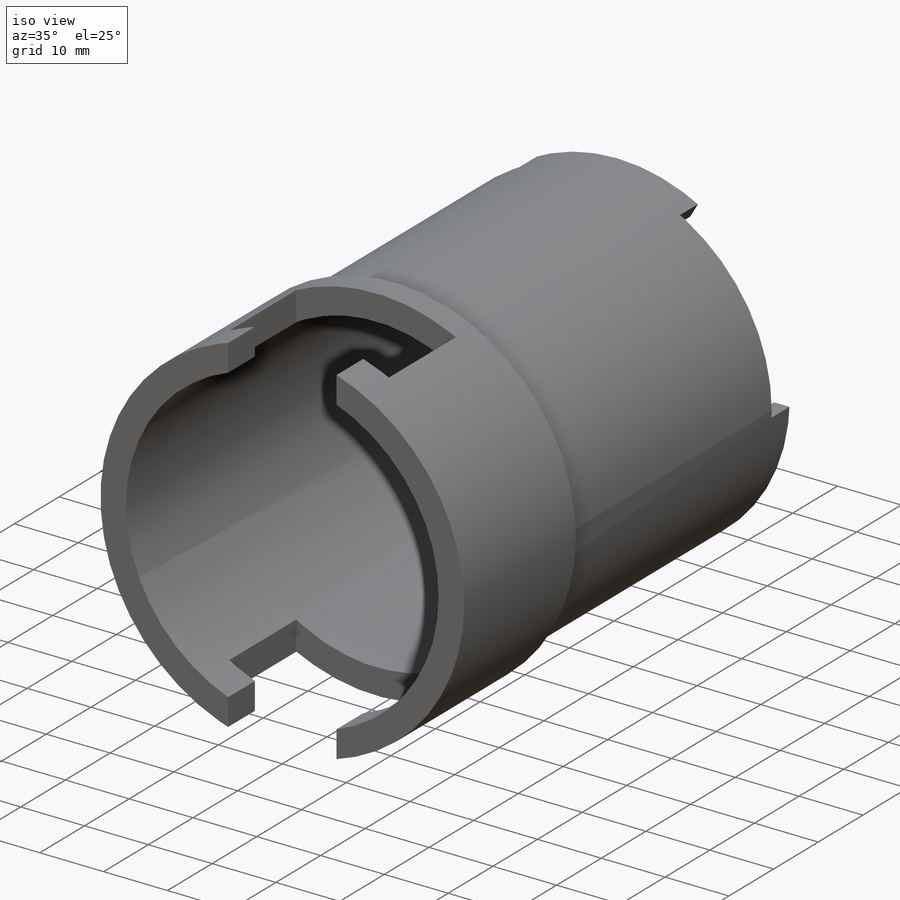
[diagram: iso view]
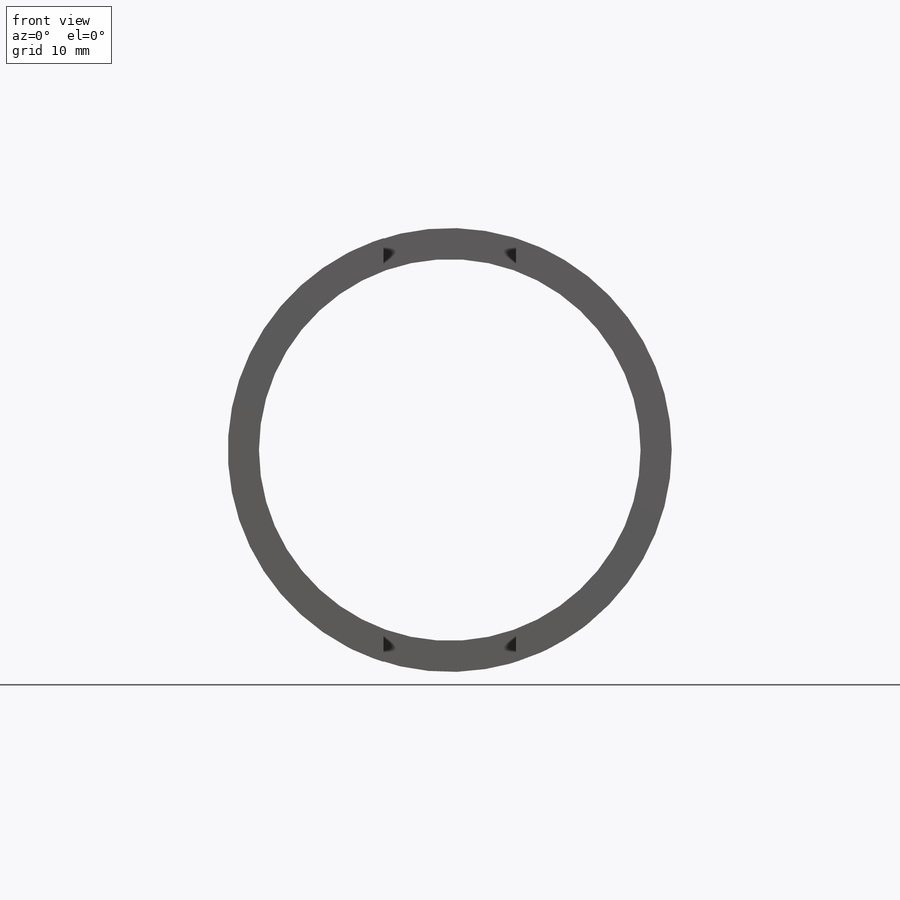
[diagram: front view]
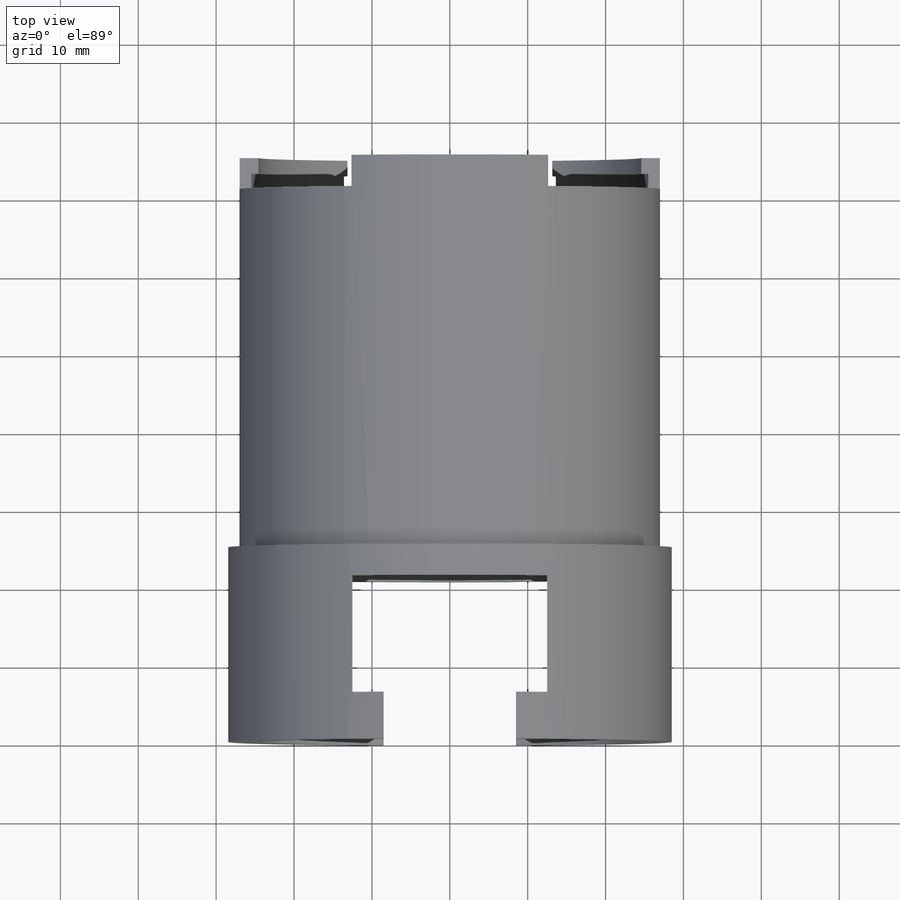
[diagram: top view]
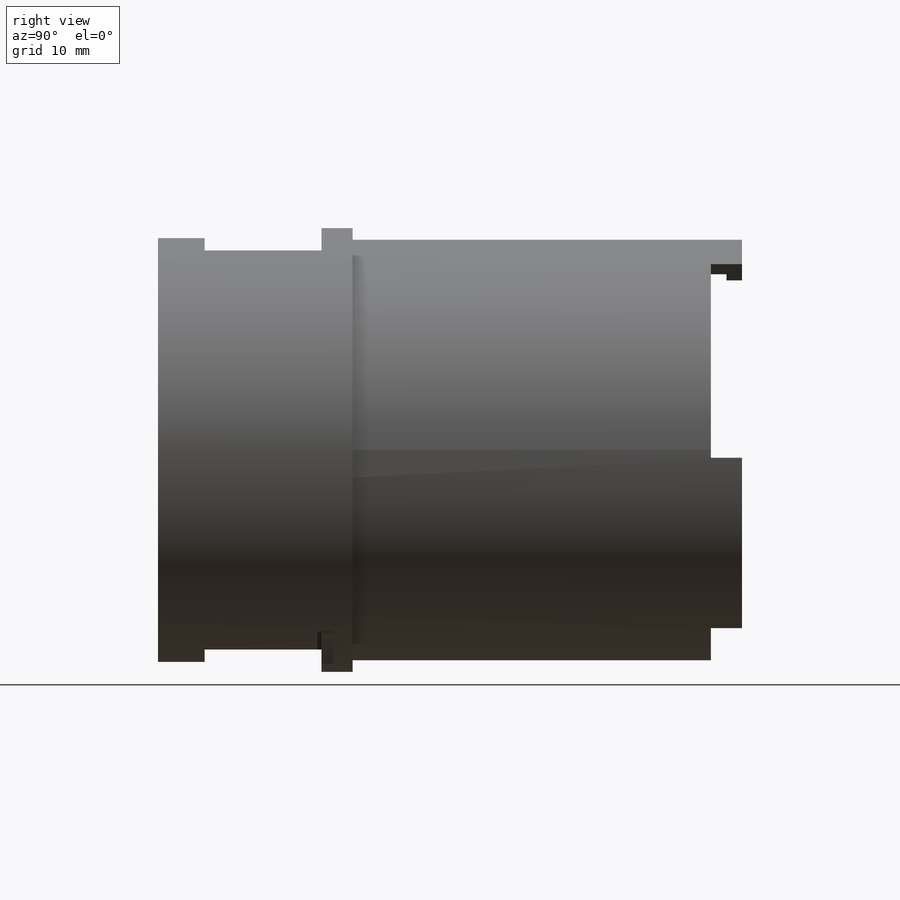
[diagram: right view]
SOLIDWORKS PART (.sldprt)
format: sldprt  version: not decoded by parser v0  size: 434,176 bytes
history: native  units: mm
features: sketch x10, cut_extrude x8, chamfer x3, plane x2, material x1, revolve x1, pattern_circular x1, cut_revolve x1 (+14 scaffold rows collapsed)
feature tree (41):
  scaffold x14  (default folders/planes/origin — collapsed)
  material  "2024-T4"
  sketch  "Эскиз1"  dims[D1=75.0mm D2=25.0mm D3=49.0mm D4=54.0mm D5=57.0mm D6=2.0mm D7=2.0mm D8=51.0mm D9=49.2mm]
  revolve  "Повернуть1"  Angle=360deg
  sketch  "Эскиз3"  dims[D1=25.0mm D2=12.5mm]
  cut_extrude  "Вырез-Вытянуть2"  Depth=12mm
  sketch  "Эскиз9"  dims[c1.D1=2.0mm c2.D1=60.0deg c2.D2=1.0mm c2.D3=1.0mm]
  cut_extrude  "Вырез-Вытянуть4"  Depth=4mm
  pattern_circular  "Круговой массив1"  Count=3 Angle=120deg
  sketch  "Эскиз10"  dims[D1=4.5mm D2=12.0mm D3=21.5mm]
  cut_extrude  "Вырез-Вытянуть5"  [1 undecoded]
  chamfer  "Фаска1"  Distance=1mm Angle=90deg
  sketch  "Эскиз11"
  cut_extrude  "Вырез-Вытянуть6"  [1 undecoded]
  sketch  "Эскиз12"  dims[D1=15.0mm D2=25.0mm D3=6.0mm]
  cut_extrude  "Вырез-Вытянуть7"  [1 undecoded]
  sketch  "Эскиз13"  dims[D1=4.0mm]
  cut_extrude  "Вырез-Вытянуть12"  [1 undecoded]
  chamfer  "Фаска2"  Distance=0.3mm Angle=60deg
  plane  "Плоскость1"
  sketch  "Эскиз14"  dims[c1.D1=10.0mm c1.D2=2.0mm c1.D3=2.0mm c1.D4=0.5mm c2.D3=2.0mm]
  cut_revolve  "Вырез-Повернуть1"  Angle=360deg
  plane  "Плоскость2"
  sketch  "Эскиз16"  dims[D1=3.0mm D2=8.0mm]
  cut_extrude  "Вырез-Вытянуть14"  Depth=3mm
  chamfer  "Фаска3"  Distance=1mm
  sketch  "Эскиз15"  dims[D1=1.5mm D2=12.0mm D3=57.0mm]
  cut_extrude  "Вырез-Вытянуть13"  [1 undecoded]
decode coverage: 18 of 24 modeling features carry decoded parameters
note: 5 parameter values undecoded
summary: no parameter record found for 5 features
note: suppression state not decoded; provenance and decode notes live in map.json
